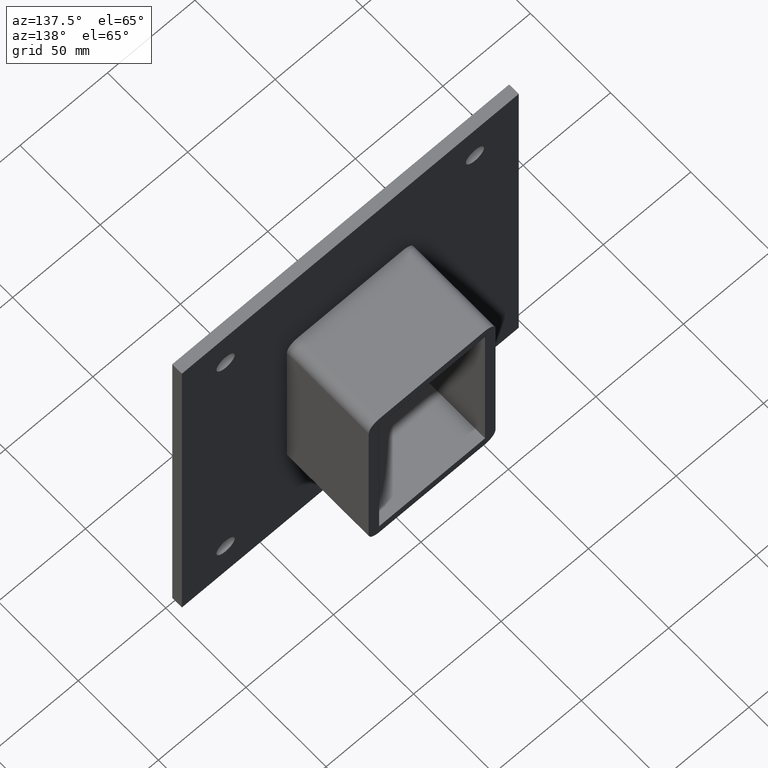
[diagram: clean part render]
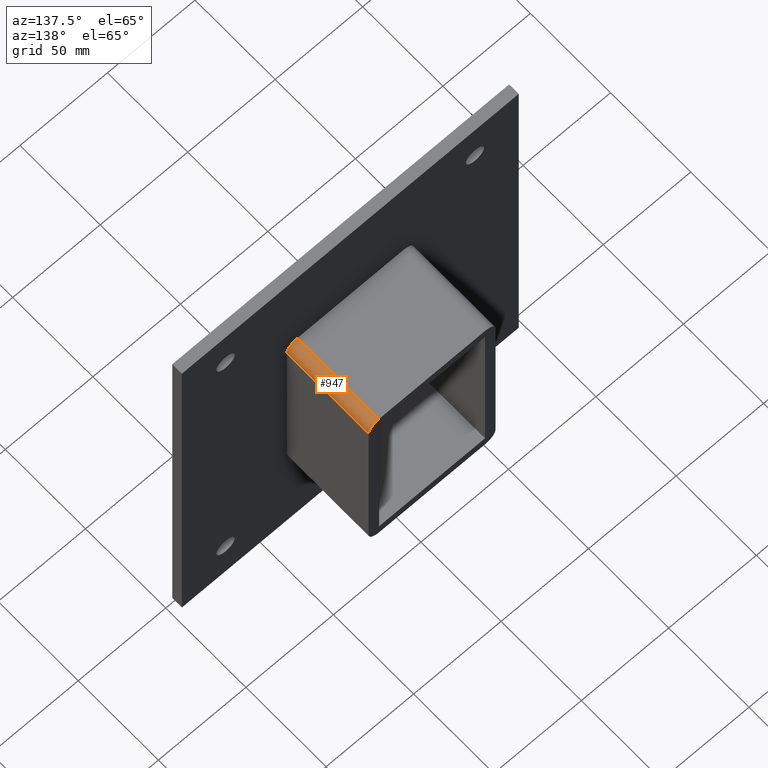
[diagram: same view with one face highlighted and labeled with its STEP entity id]
A machine part, auxiliary view. The second image highlights one B-rep face of the part: STEP entity #947.
In plain terms, the highlighted cylindrical surface (edge-blend (fillet) strip) has radius 6 mm, axis along (0, -1, 0).
Its self-contained STEP definition (entity closure, byte-faithful):
#276=CARTESIAN_POINT('',(36.25,6.000000000000001,50.500000000000057));
#277=VERTEX_POINT('',#276);
#284=CARTESIAN_POINT('',(30.250000000000004,6.000000000000001,56.500000000000057));
#285=VERTEX_POINT('',#284);
#286=CARTESIAN_POINT('',(30.250000000000004,6.000000000000001,50.500000000000057));
#287=DIRECTION('',(0.0,1.0,0.0));
#288=DIRECTION('',(0.707106781186547,0.0,0.707106781186547));
#289=AXIS2_PLACEMENT_3D('',#286,#287,#288);
#290=CIRCLE('',#289,6.0);
#291=EDGE_CURVE('',#285,#277,#290,.T.);
#905=CARTESIAN_POINT('',(30.250000000000004,57.0,56.500000000000057));
#906=VERTEX_POINT('',#905);
#907=CARTESIAN_POINT('',(30.250000000000004,57.0,56.500000000000057));
#908=DIRECTION('',(0.0,-1.0,0.0));
#909=VECTOR('',#908,51.0);
#910=LINE('',#907,#909);
#911=EDGE_CURVE('',#906,#285,#910,.T.);
#923=CARTESIAN_POINT('',(30.250000000000004,0.0,50.500000000000057));
#924=DIRECTION('',(0.0,-1.0,0.0));
#925=DIRECTION('',(0.707106781186547,0.0,0.707106781186547));
#926=AXIS2_PLACEMENT_3D('',#923,#924,#925);
#927=CYLINDRICAL_SURFACE('',#926,6.000000000000001);
#928=ORIENTED_EDGE('',*,*,#291,.T.);
#929=CARTESIAN_POINT('',(36.25,57.0,50.500000000000057));
#930=VERTEX_POINT('',#929);
#931=CARTESIAN_POINT('',(36.25,6.000000000000001,50.500000000000057));
#932=DIRECTION('',(0.0,1.0,0.0));
#933=VECTOR('',#932,51.0);
#934=LINE('',#931,#933);
#935=EDGE_CURVE('',#277,#930,#934,.T.);
#936=ORIENTED_EDGE('',*,*,#935,.T.);
#937=CARTESIAN_POINT('',(30.250000000000004,57.0,50.500000000000057));
#938=DIRECTION('',(0.0,-1.0,0.0));
#939=DIRECTION('',(0.707106781186547,0.0,0.707106781186547));
#940=AXIS2_PLACEMENT_3D('',#937,#938,#939);
#941=CIRCLE('',#940,6.0);
#942=EDGE_CURVE('',#930,#906,#941,.T.);
#943=ORIENTED_EDGE('',*,*,#942,.T.);
#944=ORIENTED_EDGE('',*,*,#911,.T.);
#945=EDGE_LOOP('',(#928,#936,#943,#944));
#946=FACE_OUTER_BOUND('',#945,.T.);
#947=ADVANCED_FACE('',(#946),#927,.T.);